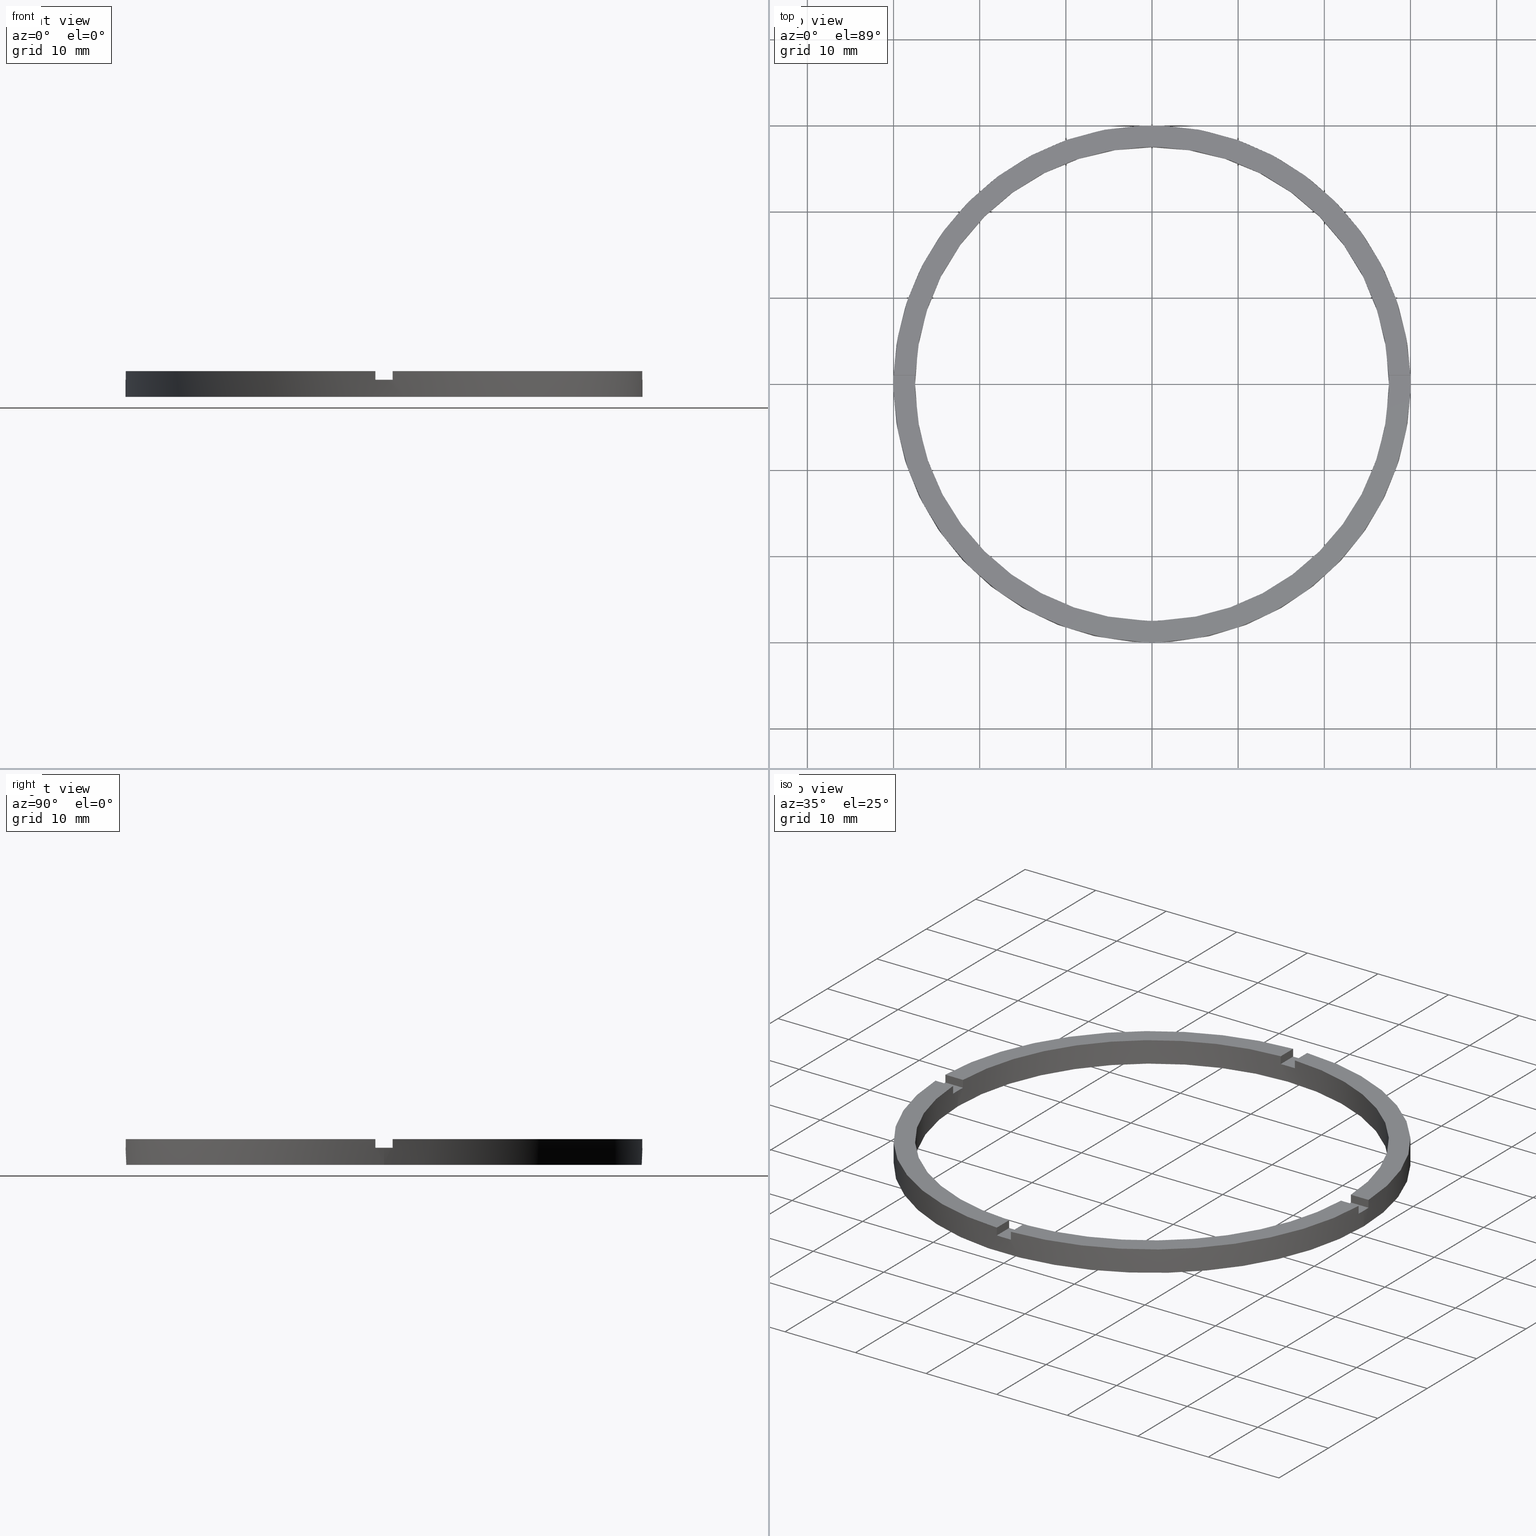
[diagram: canonical four-view strip — front | top / right | iso, engineering-drawing reading convention]
A machine part, canonical four-view strip (front | top / right | iso — engineering-drawing reading convention). The complete STEP part file that produces these views, byte-faithful:
ISO-10303-21;
HEADER;
FILE_DESCRIPTION (( 'STEP AP203' ),
    '1' );
FILE_NAME ('514125.step',
    '2024-12-26T02:39:53',
    ( 'MSI' ),
    ( '' ),
    'SwSTEP 2.0',
    'SolidWorks 2020',
    '' );
FILE_SCHEMA (( 'CONFIG_CONTROL_DESIGN' ));
ENDSEC;

DATA;
#1 = ORIENTED_EDGE ( 'NONE', *, *, #58, .F. ) ;
#2 = VECTOR ( 'NONE', #181, 1000.000000000000000 ) ;
#3 = ORIENTED_EDGE ( 'NONE', *, *, #628, .T. ) ;
#4 = CARTESIAN_POINT ( 'NONE',  ( 0.000000000000000000, 0.000000000000000000, 0.000000000000000000 ) ) ;
#5 = ORIENTED_EDGE ( 'NONE', *, *, #496, .T. ) ;
#6 = CIRCLE ( 'NONE', #525, 27.50000000000000000 ) ;
#7 = DIRECTION ( 'NONE',  ( 0.000000000000000000, 0.000000000000000000, 1.000000000000000000 ) ) ;
#8 = ORGANIZATION ( 'δָ��', 'δָ��', '' ) ;
#9 = CIRCLE ( 'NONE', #631, 30.00000000000000000 ) ;
#10 = CIRCLE ( 'NONE', #600, 27.50000000000000000 ) ;
#11 = DIRECTION ( 'NONE',  ( 0.000000000000000000, 0.000000000000000000, 1.000000000000000000 ) ) ;
#12 = CIRCLE ( 'NONE', #144, 27.50000000000000000 ) ;
#13 = CARTESIAN_POINT ( 'NONE',  ( 27.50000000000000000, 3.367778697655221307E-15, 2.000000000000000000 ) ) ;
#14 = VECTOR ( 'NONE', #372, 1000.000000000000000 ) ;
#15 = VECTOR ( 'NONE', #375, 1000.000000000000000 ) ;
#16 = EDGE_CURVE ( 'NONE', #452, #435, #162, .T. ) ;
#17 = DIRECTION ( 'NONE',  ( -1.000000000000000000, 0.000000000000000000, 0.000000000000000000 ) ) ;
#18 = EDGE_CURVE ( 'NONE', #130, #411, #672, .T. ) ;
#19 = CARTESIAN_POINT ( 'NONE',  ( 0.9999999999999729106, 29.98332870112989923, 3.000000000000000000 ) ) ;
#20 = AXIS2_PLACEMENT_3D ( 'NONE', #26, #33, #102 ) ;
#21 = LOCAL_TIME ( 10, 39, 53.00000000000000000, #301 ) ;
#22 = PLANE ( 'NONE',  #141 ) ;
#23 = AXIS2_PLACEMENT_3D ( 'NONE', #482, #76, #261 ) ;
#24 = CALENDAR_DATE ( 2024, 26, 12 ) ;
#25 = AXIS2_PLACEMENT_3D ( 'NONE', #4, #469, #262 ) ;
#26 = CARTESIAN_POINT ( 'NONE',  ( 0.000000000000000000, 0.000000000000000000, 0.000000000000000000 ) ) ;
#27 = COORDINATED_UNIVERSAL_TIME_OFFSET ( 8, 0, .AHEAD. ) ;
#28 = LINE ( 'NONE', #491, #43 ) ;
#29 = APPROVAL_DATE_TIME ( #294, #655 ) ;
#30 = EDGE_CURVE ( 'NONE', #235, #488, #166, .T. ) ;
#31 = PERSON_AND_ORGANIZATION ( #317, #8 ) ;
#32 = CARTESIAN_POINT ( 'NONE',  ( 0.000000000000000000, 0.000000000000000000, 3.000000000000000000 ) ) ;
#33 = DIRECTION ( 'NONE',  ( 0.000000000000000000, 0.000000000000000000, 1.000000000000000000 ) ) ;
#34 = APPROVAL_PERSON_ORGANIZATION ( #551, #655, #93 ) ;
#35 = CARTESIAN_POINT ( 'NONE',  ( -20.00000000000018119, -1.000000000000026201, 3.000000000000000000 ) ) ;
#36 = DATE_AND_TIME ( #24, #51 ) ;
#37 = EDGE_CURVE ( 'NONE', #721, #738, #426, .T. ) ;
#38 = CARTESIAN_POINT ( 'NONE',  ( -27.50000000000000000, 0.000000000000000000, 0.000000000000000000 ) ) ;
#39 = SHAPE_DEFINITION_REPRESENTATION ( #145, #142 ) ;
#40 = CARTESIAN_POINT ( 'NONE',  ( 0.9999999999999729106, 27.48181216732259102, 2.000000000000000000 ) ) ;
#41 = CARTESIAN_POINT ( 'NONE',  ( 27.50000000000000000, 3.367778697655221307E-15, 3.000000000000000000 ) ) ;
#42 = DIRECTION ( 'NONE',  ( 1.000000000000000000, -2.168404344971008560E-17, 0.000000000000000000 ) ) ;
#43 = VECTOR ( 'NONE', #327, 1000.000000000000000 ) ;
#44 = PERSON_AND_ORGANIZATION ( #317, #8 ) ;
#45 = ADVANCED_FACE ( 'NONE', ( #171 ), #97, .T. ) ;
#46 = APPROVAL_PERSON_ORGANIZATION ( #558, #451, #636 ) ;
#47 = DIRECTION ( 'NONE',  ( 1.000000000000000000, 0.000000000000000000, 0.000000000000000000 ) ) ;
#48 = DIRECTION ( 'NONE',  ( 6.505213034913025371E-17, -1.000000000000000000, 0.000000000000000000 ) ) ;
#49 = CARTESIAN_POINT ( 'NONE',  ( 0.000000000000000000, 0.000000000000000000, 0.000000000000000000 ) ) ;
#50 = CARTESIAN_POINT ( 'NONE',  ( -1.000000000000158984, -29.98332870112989212, 3.000000000000000000 ) ) ;
#51 = LOCAL_TIME ( 10, 39, 53.00000000000000000, #561 ) ;
#52 = VECTOR ( 'NONE', #128, 1000.000000000000000 ) ;
#53 = VECTOR ( 'NONE', #210, 1000.000000000000000 ) ;
#54 = DIRECTION ( 'NONE',  ( 0.000000000000000000, -0.000000000000000000, 1.000000000000000000 ) ) ;
#55 = LINE ( 'NONE', #80, #52 ) ;
#56 = DIRECTION ( 'NONE',  ( 1.000000000000000000, 0.000000000000000000, 0.000000000000000000 ) ) ;
#57 = EDGE_CURVE ( 'NONE', #380, #435, #680, .T. ) ;
#58 = EDGE_CURVE ( 'NONE', #602, #535, #200, .T. ) ;
#59 = DIRECTION ( 'NONE',  ( -6.505213034913025371E-17, 1.000000000000000000, 0.000000000000000000 ) ) ;
#60 = DIRECTION ( 'NONE',  ( 0.000000000000000000, -0.000000000000000000, 1.000000000000000000 ) ) ;
#61 = AXIS2_PLACEMENT_3D ( 'NONE', #367, #485, #642 ) ;
#62 = EDGE_CURVE ( 'NONE', #749, #157, #466, .T. ) ;
#63 = DIRECTION ( 'NONE',  ( 1.000000000000000000, 0.000000000000000000, -0.000000000000000000 ) ) ;
#64 = APPROVAL ( #304, 'δָ��' ) ;
#65 = AXIS2_PLACEMENT_3D ( 'NONE', #236, #468, #96 ) ;
#66 = DIRECTION ( 'NONE',  ( 1.000000000000000000, 0.000000000000000000, 0.000000000000000000 ) ) ;
#67 = DIRECTION ( 'NONE',  ( 0.000000000000000000, -0.000000000000000000, 1.000000000000000000 ) ) ;
#68 = DIRECTION ( 'NONE',  ( 0.000000000000000000, 0.000000000000000000, 1.000000000000000000 ) ) ;
#69 = ADVANCED_FACE ( 'NONE', ( #720 ), #104, .F. ) ;
#70 = PLANE ( 'NONE',  #61 ) ;
#71 = ADVANCED_FACE ( 'NONE', ( #218 ), #693, .F. ) ;
#72 = CARTESIAN_POINT ( 'NONE',  ( -1.000000000000158984, -29.98332870112989212, 3.000000000000000000 ) ) ;
#73 = CARTESIAN_POINT ( 'NONE',  ( -27.48181216732259102, 0.9999999999999722444, 2.000000000000000000 ) ) ;
#74 = ADVANCED_FACE ( 'NONE', ( #453 ), #709, .F. ) ;
#75 = CARTESIAN_POINT ( 'NONE',  ( 29.98332870112989212, -1.000000000000156097, 3.000000000000000000 ) ) ;
#76 = DIRECTION ( 'NONE',  ( 0.000000000000000000, -0.000000000000000000, 1.000000000000000000 ) ) ;
#77 = DIRECTION ( 'NONE',  ( -0.000000000000000000, -0.000000000000000000, -1.000000000000000000 ) ) ;
#78 = CC_DESIGN_DATE_AND_TIME_ASSIGNMENT ( #36, #393, ( #242 ) ) ;
#79 = EDGE_CURVE ( 'NONE', #143, #208, #695, .T. ) ;
#80 = CARTESIAN_POINT ( 'NONE',  ( 19.99999999999999289, -1.000000000000156763, 2.000000000000000000 ) ) ;
#81 = DIRECTION ( 'NONE',  ( -0.000000000000000000, -0.000000000000000000, -1.000000000000000000 ) ) ;
#82 = AXIS2_PLACEMENT_3D ( 'NONE', #149, #42, #126 ) ;
#83 = EDGE_CURVE ( 'NONE', #130, #638, #193, .T. ) ;
#84 = DIRECTION ( 'NONE',  ( 1.000000000000000000, 0.000000000000000000, 0.000000000000000000 ) ) ;
#85 = DIRECTION ( 'NONE',  ( 1.000000000000000000, 6.505213034913025371E-17, 0.000000000000000000 ) ) ;
#86 = DIRECTION ( 'NONE',  ( 1.000000000000000000, 0.000000000000000000, 0.000000000000000000 ) ) ;
#87 = PLANE ( 'NONE',  #608 ) ;
#88 = CC_DESIGN_PERSON_AND_ORGANIZATION_ASSIGNMENT ( #543, #349, ( #394 ) ) ;
#89 = APPLICATION_PROTOCOL_DEFINITION ( 'international standard', 'config_control_design', 1994, #620 ) ;
#90 = EDGE_CURVE ( 'NONE', #452, #398, #687, .T. ) ;
#91 = CARTESIAN_POINT ( 'NONE',  ( 0.000000000000000000, 0.000000000000000000, 3.000000000000000000 ) ) ;
#92 = VECTOR ( 'NONE', #520, 1000.000000000000000 ) ;
#93 = APPROVAL_ROLE ( '' ) ;
#94 = FACE_OUTER_BOUND ( 'NONE', #418, .T. ) ;
#95 = EDGE_CURVE ( 'NONE', #648, #143, #175, .T. ) ;
#96 = DIRECTION ( 'NONE',  ( 1.000000000000000000, 0.000000000000000000, 0.000000000000000000 ) ) ;
#97 = PLANE ( 'NONE',  #153 ) ;
#98 = AXIS2_PLACEMENT_3D ( 'NONE', #223, #742, #125 ) ;
#99 = LINE ( 'NONE', #50, #730 ) ;
#100 = EDGE_CURVE ( 'NONE', #398, #535, #454, .T. ) ;
#101 = DIRECTION ( 'NONE',  ( 0.000000000000000000, -0.000000000000000000, 1.000000000000000000 ) ) ;
#102 = DIRECTION ( 'NONE',  ( 1.000000000000000000, 0.000000000000000000, -0.000000000000000000 ) ) ;
#103 = EDGE_CURVE ( 'NONE', #160, #745, #698, .T. ) ;
#104 = PLANE ( 'NONE',  #610 ) ;
#105 = ORIENTED_EDGE ( 'NONE', *, *, #37, .F. ) ;
#106 = AXIS2_PLACEMENT_3D ( 'NONE', #664, #613, #84 ) ;
#107 = CARTESIAN_POINT ( 'NONE',  ( -29.98332870112989568, -1.000000000000028200, 3.000000000000000000 ) ) ;
#108 = DIRECTION ( 'NONE',  ( 1.000000000000000000, 0.000000000000000000, 0.000000000000000000 ) ) ;
#109 = ORIENTED_EDGE ( 'NONE', *, *, #465, .T. ) ;
#110 = EDGE_CURVE ( 'NONE', #661, #235, #437, .T. ) ;
#111 = CARTESIAN_POINT ( 'NONE',  ( -27.48181216732259102, 0.9999999999999722444, 3.000000000000000000 ) ) ;
#112 = ORIENTED_EDGE ( 'NONE', *, *, #62, .T. ) ;
#113 = VERTEX_POINT ( 'NONE', #72 ) ;
#114 = PLANE ( 'NONE',  #192 ) ;
#115 = DIRECTION ( 'NONE',  ( 1.000000000000000000, 0.000000000000000000, 0.000000000000000000 ) ) ;
#116 = DIRECTION ( 'NONE',  ( 0.000000000000000000, 0.000000000000000000, 1.000000000000000000 ) ) ;
#117 = CARTESIAN_POINT ( 'NONE',  ( 0.000000000000000000, 0.000000000000000000, 2.000000000000000000 ) ) ;
#118 = ORIENTED_EDGE ( 'NONE', *, *, #336, .F. ) ;
#119 = ORIENTED_EDGE ( 'NONE', *, *, #647, .F. ) ;
#120 = EDGE_LOOP ( 'NONE', ( #5, #124, #464, #404 ) ) ;
#121 = PLANE ( 'NONE',  #470 ) ;
#122 = EDGE_CURVE ( 'NONE', #489, #370, #678, .T. ) ;
#123 = CARTESIAN_POINT ( 'NONE',  ( -1.000000000000027089, 27.48181216732259102, 3.000000000000000000 ) ) ;
#124 = ORIENTED_EDGE ( 'NONE', *, *, #647, .T. ) ;
#125 = DIRECTION ( 'NONE',  ( 1.000000000000000000, 0.000000000000000000, 0.000000000000000000 ) ) ;
#126 = DIRECTION ( 'NONE',  ( 2.168404344971008560E-17, 1.000000000000000000, 0.000000000000000000 ) ) ;
#127 = ORIENTED_EDGE ( 'NONE', *, *, #415, .F. ) ;
#128 = DIRECTION ( 'NONE',  ( 1.000000000000000000, 6.505213034913025371E-17, 0.000000000000000000 ) ) ;
#129 = CARTESIAN_POINT ( 'NONE',  ( 0.9999999999998411271, -29.98332870112990278, 2.000000000000000000 ) ) ;
#130 = VERTEX_POINT ( 'NONE', #271 ) ;
#131 = CARTESIAN_POINT ( 'NONE',  ( -1.000000000000027089, 27.48181216732259102, 3.000000000000000000 ) ) ;
#132 = DIRECTION ( 'NONE',  ( 1.301042606982605074E-16, -1.000000000000000000, 0.000000000000000000 ) ) ;
#133 = ORIENTED_EDGE ( 'NONE', *, *, #195, .T. ) ;
#134 = EDGE_CURVE ( 'NONE', #225, #670, #184, .T. ) ;
#135 = CARTESIAN_POINT ( 'NONE',  ( 0.000000000000000000, 0.000000000000000000, 3.000000000000000000 ) ) ;
#136 = ORIENTED_EDGE ( 'NONE', *, *, #103, .T. ) ;
#137 = CARTESIAN_POINT ( 'NONE',  ( 27.48181216732259458, 0.9999999999998436806, 3.000000000000000000 ) ) ;
#138 = EDGE_LOOP ( 'NONE', ( #136, #133, #410, #409 ) ) ;
#139 = CARTESIAN_POINT ( 'NONE',  ( -29.98332870112989568, -1.000000000000028200, 2.000000000000000000 ) ) ;
#140 = DIRECTION ( 'NONE',  ( 0.000000000000000000, 0.000000000000000000, 1.000000000000000000 ) ) ;
#141 = AXIS2_PLACEMENT_3D ( 'NONE', #302, #307, #63 ) ;
#142 = ADVANCED_BREP_SHAPE_REPRESENTATION ( '514125', ( #701, #635 ), #238 ) ;
#143 = VERTEX_POINT ( 'NONE', #649 ) ;
#144 = AXIS2_PLACEMENT_3D ( 'NONE', #509, #606, #573 ) ;
#145 = PRODUCT_DEFINITION_SHAPE ( 'NONE', 'NONE',  #363 ) ;
#146 = AXIS2_PLACEMENT_3D ( 'NONE', #590, #11, #237 ) ;
#147 = ORIENTED_EDGE ( 'NONE', *, *, #578, .F. ) ;
#148 = ORIENTED_EDGE ( 'NONE', *, *, #555, .F. ) ;
#149 = CARTESIAN_POINT ( 'NONE',  ( 0.9999999999999726885, 19.99999999999999645, 2.000000000000000000 ) ) ;
#150 = ORIENTED_EDGE ( 'NONE', *, *, #350, .F. ) ;
#151 = VERTEX_POINT ( 'NONE', #570 ) ;
#152 = ORIENTED_EDGE ( 'NONE', *, *, #100, .T. ) ;
#153 = AXIS2_PLACEMENT_3D ( 'NONE', #710, #101, #170 ) ;
#154 = ORIENTED_EDGE ( 'NONE', *, *, #284, .T. ) ;
#155 = ORIENTED_EDGE ( 'NONE', *, *, #183, .F. ) ;
#156 = CARTESIAN_POINT ( 'NONE',  ( 30.00000000000000000, 3.673940397442059178E-15, 3.000000000000000000 ) ) ;
#157 = VERTEX_POINT ( 'NONE', #198 ) ;
#158 = DATE_TIME_ROLE ( 'creation_date' ) ;
#159 = ORIENTED_EDGE ( 'NONE', *, *, #90, .T. ) ;
#160 = VERTEX_POINT ( 'NONE', #365 ) ;
#161 = ORIENTED_EDGE ( 'NONE', *, *, #634, .F. ) ;
#162 = LINE ( 'NONE', #399, #422 ) ;
#163 = ORIENTED_EDGE ( 'NONE', *, *, #546, .F. ) ;
#164 = CARTESIAN_POINT ( 'NONE',  ( 0.9999999999998397948, -20.00000000000017764, 2.000000000000000000 ) ) ;
#165 = ORIENTED_EDGE ( 'NONE', *, *, #622, .T. ) ;
#166 = CIRCLE ( 'NONE', #25, 30.00000000000000000 ) ;
#167 = VERTEX_POINT ( 'NONE', #603 ) ;
#168 = VECTOR ( 'NONE', #588, 1000.000000000000000 ) ;
#169 = ORIENTED_EDGE ( 'NONE', *, *, #718, .T. ) ;
#170 = DIRECTION ( 'NONE',  ( 1.000000000000000000, 0.000000000000000000, -0.000000000000000000 ) ) ;
#171 = FACE_OUTER_BOUND ( 'NONE', #138, .T. ) ;
#172 = LINE ( 'NONE', #423, #707 ) ;
#173 = CARTESIAN_POINT ( 'NONE',  ( 0.000000000000000000, 0.000000000000000000, 3.000000000000000000 ) ) ;
#174 = EDGE_LOOP ( 'NONE', ( #461, #189, #712, #463, #438, #677 ) ) ;
#175 = LINE ( 'NONE', #111, #459 ) ;
#176 = ORIENTED_EDGE ( 'NONE', *, *, #269, .T. ) ;
#177 = LINE ( 'NONE', #541, #445 ) ;
#178 = CARTESIAN_POINT ( 'NONE',  ( -1.000000000000027311, 19.99999999999999645, 2.000000000000000000 ) ) ;
#179 = EDGE_LOOP ( 'NONE', ( #217, #626, #388, #669, #386, #118, #384, #246, #526, #259, #248, #3 ) ) ;
#180 = FACE_OUTER_BOUND ( 'NONE', #736, .T. ) ;
#181 = DIRECTION ( 'NONE',  ( -0.000000000000000000, -0.000000000000000000, -1.000000000000000000 ) ) ;
#182 = FACE_OUTER_BOUND ( 'NONE', #493, .T. ) ;
#183 = EDGE_CURVE ( 'NONE', #167, #670, #433, .T. ) ;
#184 = CIRCLE ( 'NONE', #337, 30.00000000000000000 ) ;
#185 = EDGE_CURVE ( 'NONE', #708, #651, #172, .T. ) ;
#186 = VECTOR ( 'NONE', #616, 1000.000000000000000 ) ;
#187 = DIRECTION ( 'NONE',  ( 0.000000000000000000, 0.000000000000000000, 1.000000000000000000 ) ) ;
#188 = ORIENTED_EDGE ( 'NONE', *, *, #465, .F. ) ;
#189 = ORIENTED_EDGE ( 'NONE', *, *, #656, .T. ) ;
#190 = AXIS2_PLACEMENT_3D ( 'NONE', #316, #7, #552 ) ;
#191 = CARTESIAN_POINT ( 'NONE',  ( 0.000000000000000000, 0.000000000000000000, 2.000000000000000000 ) ) ;
#192 = AXIS2_PLACEMENT_3D ( 'NONE', #321, #268, #273 ) ;
#193 = CIRCLE ( 'NONE', #146, 30.00000000000000000 ) ;
#194 = ADVANCED_FACE ( 'NONE', ( #689 ), #22, .T. ) ;
#195 = EDGE_CURVE ( 'NONE', #745, #226, #177, .T. ) ;
#196 = DESIGN_CONTEXT ( 'detailed design', #705, 'design' ) ;
#197 = VECTOR ( 'NONE', #326, 1000.000000000000000 ) ;
#198 = CARTESIAN_POINT ( 'NONE',  ( -1.000000000000159428, -27.48181216732258392, 3.000000000000000000 ) ) ;
#199 = ORIENTED_EDGE ( 'NONE', *, *, #83, .T. ) ;
#200 = LINE ( 'NONE', #315, #455 ) ;
#201 = CARTESIAN_POINT ( 'NONE',  ( 0.9999999999998397948, -20.00000000000017764, 3.000000000000000000 ) ) ;
#202 = EDGE_CURVE ( 'NONE', #370, #214, #205, .T. ) ;
#203 = CC_DESIGN_APPROVAL ( #64, ( #394 ) ) ;
#204 = ORIENTED_EDGE ( 'NONE', *, *, #586, .F. ) ;
#205 = CIRCLE ( 'NONE', #65, 27.50000000000000000 ) ;
#206 = AXIS2_PLACEMENT_3D ( 'NONE', #382, #539, #758 ) ;
#207 = DIRECTION ( 'NONE',  ( 0.000000000000000000, 0.000000000000000000, 1.000000000000000000 ) ) ;
#208 = VERTEX_POINT ( 'NONE', #587 ) ;
#209 = ADVANCED_FACE ( 'NONE', ( #439 ), #344, .F. ) ;
#210 = DIRECTION ( 'NONE',  ( -0.000000000000000000, -0.000000000000000000, -1.000000000000000000 ) ) ;
#211 = ORIENTED_EDGE ( 'NONE', *, *, #79, .T. ) ;
#212 = VERTEX_POINT ( 'NONE', #782 ) ;
#213 = CARTESIAN_POINT ( 'NONE',  ( -29.98332870112989568, -1.000000000000028200, 3.000000000000000000 ) ) ;
#214 = VERTEX_POINT ( 'NONE', #460 ) ;
#215 = VECTOR ( 'NONE', #490, 1000.000000000000000 ) ;
#216 = ADVANCED_FACE ( 'NONE', ( #180 ), #612, .F. ) ;
#217 = ORIENTED_EDGE ( 'NONE', *, *, #110, .F. ) ;
#218 = FACE_OUTER_BOUND ( 'NONE', #706, .T. ) ;
#219 = DIRECTION ( 'NONE',  ( 0.000000000000000000, 0.000000000000000000, 1.000000000000000000 ) ) ;
#220 = EDGE_LOOP ( 'NONE', ( #624, #633 ) ) ;
#221 = ADVANCED_FACE ( 'NONE', ( #182 ), #377, .T. ) ;
#222 = DIRECTION ( 'NONE',  ( 1.000000000000000000, 0.000000000000000000, 0.000000000000000000 ) ) ;
#223 = CARTESIAN_POINT ( 'NONE',  ( 0.000000000000000000, 0.000000000000000000, 0.000000000000000000 ) ) ;
#224 = EDGE_LOOP ( 'NONE', ( #531, #627, #413, #148 ) ) ;
#225 = VERTEX_POINT ( 'NONE', #228 ) ;
#226 = VERTEX_POINT ( 'NONE', #458 ) ;
#227 = UNCERTAINTY_MEASURE_WITH_UNIT (LENGTH_MEASURE( 1.000000000000000082E-05 ), #340, 'distance_accuracy_value', 'NONE');
#228 = CARTESIAN_POINT ( 'NONE',  ( 0.9999999999998411271, -29.98332870112990278, 3.000000000000000000 ) ) ;
#229 = CYLINDRICAL_SURFACE ( 'NONE', #771, 30.00000000000000000 ) ;
#230 = FACE_OUTER_BOUND ( 'NONE', #224, .T. ) ;
#231 = ORIENTED_EDGE ( 'NONE', *, *, #401, .T. ) ;
#232 = EDGE_CURVE ( 'NONE', #721, #160, #691, .T. ) ;
#233 = EDGE_LOOP ( 'NONE', ( #395, #270, #392, #450, #660, #674 ) ) ;
#234 = CLOSED_SHELL ( 'NONE', ( #71, #725, #732, #412, #501, #221, #492, #324, #74, #665, #654, #286, #209, #216, #514, #274, #598, #194, #69, #332, #45 ) ) ;
#235 = VERTEX_POINT ( 'NONE', #623 ) ;
#236 = CARTESIAN_POINT ( 'NONE',  ( 0.000000000000000000, 0.000000000000000000, 0.000000000000000000 ) ) ;
#237 = DIRECTION ( 'NONE',  ( 1.000000000000000000, 0.000000000000000000, 0.000000000000000000 ) ) ;
#238 =( GEOMETRIC_REPRESENTATION_CONTEXT ( 3 ) GLOBAL_UNCERTAINTY_ASSIGNED_CONTEXT ( ( #227 ) ) GLOBAL_UNIT_ASSIGNED_CONTEXT ( ( #340, #285, #335 ) ) REPRESENTATION_CONTEXT ( 'NONE', 'WORKASPACE' ) );
#239 = EDGE_CURVE ( 'NONE', #167, #661, #700, .T. ) ;
#240 = ORIENTED_EDGE ( 'NONE', *, *, #18, .T. ) ;
#241 = CARTESIAN_POINT ( 'NONE',  ( 0.000000000000000000, 0.000000000000000000, 3.000000000000000000 ) ) ;
#242 = SECURITY_CLASSIFICATION ( '', '', #549 ) ;
#243 = LINE ( 'NONE', #572, #759 ) ;
#244 = APPROVAL_STATUS ( 'not_yet_approved' ) ;
#245 = VECTOR ( 'NONE', #354, 1000.000000000000000 ) ;
#246 = ORIENTED_EDGE ( 'NONE', *, *, #476, .F. ) ;
#247 = CARTESIAN_POINT ( 'NONE',  ( -1.000000000000159428, -27.48181216732258392, 3.000000000000000000 ) ) ;
#248 = ORIENTED_EDGE ( 'NONE', *, *, #577, .T. ) ;
#249 = CARTESIAN_POINT ( 'NONE',  ( 0.000000000000000000, 0.000000000000000000, 2.000000000000000000 ) ) ;
#250 = LINE ( 'NONE', #35, #769 ) ;
#251 = VECTOR ( 'NONE', #330, 1000.000000000000000 ) ;
#252 = FACE_OUTER_BOUND ( 'NONE', #716, .T. ) ;
#253 = ORIENTED_EDGE ( 'NONE', *, *, #30, .F. ) ;
#254 = CARTESIAN_POINT ( 'NONE',  ( 29.98332870112990278, 0.9999999999998439026, 3.000000000000000000 ) ) ;
#255 = FACE_OUTER_BOUND ( 'NONE', #407, .T. ) ;
#256 = ORIENTED_EDGE ( 'NONE', *, *, #57, .T. ) ;
#257 = DIRECTION ( 'NONE',  ( 1.000000000000000000, 0.000000000000000000, 0.000000000000000000 ) ) ;
#258 = FACE_BOUND ( 'NONE', #220, .T. ) ;
#259 = ORIENTED_EDGE ( 'NONE', *, *, #656, .F. ) ;
#260 = LINE ( 'NONE', #419, #15 ) ;
#261 = DIRECTION ( 'NONE',  ( 1.000000000000000000, 0.000000000000000000, 0.000000000000000000 ) ) ;
#262 = DIRECTION ( 'NONE',  ( 1.000000000000000000, 0.000000000000000000, 0.000000000000000000 ) ) ;
#263 = CIRCLE ( 'NONE', #424, 27.50000000000000000 ) ;
#264 = ORIENTED_EDGE ( 'NONE', *, *, #752, .F. ) ;
#265 = CARTESIAN_POINT ( 'NONE',  ( -20.00000000000018119, -1.000000000000026201, 2.000000000000000000 ) ) ;
#266 = LINE ( 'NONE', #436, #538 ) ;
#267 = EDGE_CURVE ( 'NONE', #666, #208, #447, .T. ) ;
#268 = DIRECTION ( 'NONE',  ( -1.951563910473907735E-16, 1.000000000000000000, 0.000000000000000000 ) ) ;
#269 = EDGE_CURVE ( 'NONE', #749, #714, #614, .T. ) ;
#270 = ORIENTED_EDGE ( 'NONE', *, *, #634, .T. ) ;
#271 = CARTESIAN_POINT ( 'NONE',  ( 29.98332870112990278, 0.9999999999998439026, 3.000000000000000000 ) ) ;
#272 = ORIENTED_EDGE ( 'NONE', *, *, #267, .F. ) ;
#273 = DIRECTION ( 'NONE',  ( -1.000000000000000000, -1.951563910473907735E-16, 0.000000000000000000 ) ) ;
#274 = ADVANCED_FACE ( 'NONE', ( #94 ), #87, .F. ) ;
#275 = DIRECTION ( 'NONE',  ( -1.301042606982605074E-16, 1.000000000000000000, -0.000000000000000000 ) ) ;
#276 = CIRCLE ( 'NONE', #23, 30.00000000000000000 ) ;
#277 = LINE ( 'NONE', #41, #523 ) ;
#278 = CARTESIAN_POINT ( 'NONE',  ( 0.9999999999999729106, 27.48181216732259102, 3.000000000000000000 ) ) ;
#279 = DIRECTION ( 'NONE',  ( 0.000000000000000000, 0.000000000000000000, 1.000000000000000000 ) ) ;
#280 = FACE_OUTER_BOUND ( 'NONE', #692, .T. ) ;
#281 = CARTESIAN_POINT ( 'NONE',  ( 0.9999999999998406830, -27.48181216732259458, 3.000000000000000000 ) ) ;
#282 = LOCAL_TIME ( 10, 39, 53.00000000000000000, #295 ) ;
#283 = DIRECTION ( 'NONE',  ( 0.000000000000000000, 0.000000000000000000, 1.000000000000000000 ) ) ;
#284 = EDGE_CURVE ( 'NONE', #380, #651, #618, .T. ) ;
#285 =( NAMED_UNIT ( * ) PLANE_ANGLE_UNIT ( ) SI_UNIT ( $, .RADIAN. ) );
#286 = ADVANCED_FACE ( 'NONE', ( #366 ), #668, .T. ) ;
#287 = DIRECTION ( 'NONE',  ( 1.000000000000000000, 0.000000000000000000, 0.000000000000000000 ) ) ;
#288 = CALENDAR_DATE ( 2024, 26, 12 ) ;
#289 = CC_DESIGN_APPROVAL ( #451, ( #363 ) ) ;
#290 = LOCAL_TIME ( 10, 39, 53.00000000000000000, #27 ) ;
#291 = DIRECTION ( 'NONE',  ( -0.000000000000000000, -0.000000000000000000, -1.000000000000000000 ) ) ;
#292 = CARTESIAN_POINT ( 'NONE',  ( -1.000000000000027089, 29.98332870112989568, 2.000000000000000000 ) ) ;
#293 = CARTESIAN_POINT ( 'NONE',  ( -29.98332870112989923, 0.9999999999999718003, 3.000000000000000000 ) ) ;
#294 = DATE_AND_TIME ( #553, #21 ) ;
#295 = COORDINATED_UNIVERSAL_TIME_OFFSET ( 8, 0, .AHEAD. ) ;
#296 = PERSON_AND_ORGANIZATION ( #317, #8 ) ;
#297 = CARTESIAN_POINT ( 'NONE',  ( 0.9999999999998406830, -27.48181216732259458, 3.000000000000000000 ) ) ;
#298 = PERSON_AND_ORGANIZATION ( #317, #8 ) ;
#299 = EDGE_CURVE ( 'NONE', #602, #738, #359, .T. ) ;
#300 = PERSON_AND_ORGANIZATION ( #317, #8 ) ;
#301 = COORDINATED_UNIVERSAL_TIME_OFFSET ( 8, 0, .AHEAD. ) ;
#302 = CARTESIAN_POINT ( 'NONE',  ( 0.000000000000000000, 0.000000000000000000, 2.000000000000000000 ) ) ;
#303 = DATE_AND_TIME ( #548, #290 ) ;
#304 = APPROVAL_STATUS ( 'not_yet_approved' ) ;
#305 = DATE_AND_TIME ( #288, #545 ) ;
#306 = DATE_AND_TIME ( #563, #282 ) ;
#307 = DIRECTION ( 'NONE',  ( 0.000000000000000000, -0.000000000000000000, 1.000000000000000000 ) ) ;
#308 = DIRECTION ( 'NONE',  ( -0.000000000000000000, -0.000000000000000000, -1.000000000000000000 ) ) ;
#309 = AXIS2_PLACEMENT_3D ( 'NONE', #611, #368, #574 ) ;
#310 = LINE ( 'NONE', #740, #53 ) ;
#311 = AXIS2_PLACEMENT_3D ( 'NONE', #696, #67, #690 ) ;
#312 = CIRCLE ( 'NONE', #662, 30.00000000000000000 ) ;
#313 = LINE ( 'NONE', #201, #245 ) ;
#314 = EDGE_CURVE ( 'NONE', #714, #113, #99, .T. ) ;
#315 = CARTESIAN_POINT ( 'NONE',  ( 27.48181216732259458, 0.9999999999998436806, 3.000000000000000000 ) ) ;
#316 = CARTESIAN_POINT ( 'NONE',  ( 0.000000000000000000, 0.000000000000000000, 3.000000000000000000 ) ) ;
#317 = PERSON ( 'δָ��', 'δָ��', 'δָ��', ('δָ��'), ('δָ��'), ('δָ��') ) ;
#318 = AXIS2_PLACEMENT_3D ( 'NONE', #751, #575, #585 ) ;
#319 = CARTESIAN_POINT ( 'NONE',  ( 0.9999999999999729106, 27.48181216732259102, 3.000000000000000000 ) ) ;
#320 = DIRECTION ( 'NONE',  ( -1.000000000000000000, -6.505213034913025371E-17, -0.000000000000000000 ) ) ;
#321 = CARTESIAN_POINT ( 'NONE',  ( -20.00000000000018119, 0.9999999999999737987, 2.000000000000000000 ) ) ;
#322 = CARTESIAN_POINT ( 'NONE',  ( 0.000000000000000000, 0.000000000000000000, 3.000000000000000000 ) ) ;
#323 = DIRECTION ( 'NONE',  ( 1.000000000000000000, 0.000000000000000000, -0.000000000000000000 ) ) ;
#324 = ADVANCED_FACE ( 'NONE', ( #726 ), #229, .T. ) ;
#325 = CARTESIAN_POINT ( 'NONE',  ( 30.00000000000000000, 3.673940397442059178E-15, 2.000000000000000000 ) ) ;
#326 = DIRECTION ( 'NONE',  ( -0.000000000000000000, -0.000000000000000000, -1.000000000000000000 ) ) ;
#327 = DIRECTION ( 'NONE',  ( -0.000000000000000000, -0.000000000000000000, -1.000000000000000000 ) ) ;
#328 = PLANE ( 'NONE',  #471 ) ;
#329 = PLANE ( 'NONE',  #667 ) ;
#330 = DIRECTION ( 'NONE',  ( -0.000000000000000000, -0.000000000000000000, -1.000000000000000000 ) ) ;
#331 = CARTESIAN_POINT ( 'NONE',  ( 0.000000000000000000, 0.000000000000000000, 3.000000000000000000 ) ) ;
#332 = ADVANCED_FACE ( 'NONE', ( #230 ), #743, .F. ) ;
#333 = EDGE_CURVE ( 'NONE', #435, #670, #478, .T. ) ;
#334 = DIRECTION ( 'NONE',  ( 0.000000000000000000, 0.000000000000000000, 1.000000000000000000 ) ) ;
#335 =( NAMED_UNIT ( * ) SI_UNIT ( $, .STERADIAN. ) SOLID_ANGLE_UNIT ( ) );
#336 = EDGE_CURVE ( 'NONE', #714, #708, #568, .T. ) ;
#337 = AXIS2_PLACEMENT_3D ( 'NONE', #32, #494, #115 ) ;
#338 = AXIS2_PLACEMENT_3D ( 'NONE', #750, #48, #85 ) ;
#339 = CARTESIAN_POINT ( 'NONE',  ( 0.000000000000000000, 0.000000000000000000, 3.000000000000000000 ) ) ;
#340 =( LENGTH_UNIT ( ) NAMED_UNIT ( * ) SI_UNIT ( .MILLI., .METRE. ) );
#341 = EDGE_CURVE ( 'NONE', #721, #226, #569, .T. ) ;
#342 = CARTESIAN_POINT ( 'NONE',  ( 19.99999999999999289, -1.000000000000156763, 3.000000000000000000 ) ) ;
#343 = CARTESIAN_POINT ( 'NONE',  ( -1.000000000000160316, -20.00000000000017764, 2.000000000000000000 ) ) ;
#344 = PLANE ( 'NONE',  #536 ) ;
#345 = DIRECTION ( 'NONE',  ( -0.000000000000000000, -0.000000000000000000, -1.000000000000000000 ) ) ;
#346 = DIRECTION ( 'NONE',  ( -2.168404344971008560E-17, -1.000000000000000000, -0.000000000000000000 ) ) ;
#347 = DIRECTION ( 'NONE',  ( -2.168404344971008560E-17, -1.000000000000000000, 0.000000000000000000 ) ) ;
#348 = PRODUCT ( '514125', '514125', '', ( #675 ) ) ;
#349 = PERSON_AND_ORGANIZATION_ROLE ( 'creator' ) ;
#350 = EDGE_CURVE ( 'NONE', #753, #208, #312, .T. ) ;
#351 = ORIENTED_EDGE ( 'NONE', *, *, #79, .F. ) ;
#352 = PLANE ( 'NONE',  #20 ) ;
#353 = DIRECTION ( 'NONE',  ( 0.000000000000000000, 0.000000000000000000, 1.000000000000000000 ) ) ;
#354 = DIRECTION ( 'NONE',  ( -1.301042606982605074E-16, 1.000000000000000000, -0.000000000000000000 ) ) ;
#355 = DIRECTION ( 'NONE',  ( 1.000000000000000000, 1.951563910473907735E-16, 0.000000000000000000 ) ) ;
#356 = AXIS2_PLACEMENT_3D ( 'NONE', #704, #68, #66 ) ;
#357 = CARTESIAN_POINT ( 'NONE',  ( 0.000000000000000000, 0.000000000000000000, 2.000000000000000000 ) ) ;
#358 = AXIS2_PLACEMENT_3D ( 'NONE', #339, #334, #222 ) ;
#359 = CIRCLE ( 'NONE', #318, 27.50000000000000000 ) ;
#360 = EDGE_CURVE ( 'NONE', #753, #745, #310, .T. ) ;
#361 = CARTESIAN_POINT ( 'NONE',  ( 27.48181216732259458, 0.9999999999998436806, 2.000000000000000000 ) ) ;
#362 = VECTOR ( 'NONE', #132, 1000.000000000000000 ) ;
#363 = PRODUCT_DEFINITION ( 'δ֪', '', #394, #196 ) ;
#364 = ORIENTED_EDGE ( 'NONE', *, *, #333, .F. ) ;
#365 = CARTESIAN_POINT ( 'NONE',  ( 0.9999999999999729106, 29.98332870112989923, 2.000000000000000000 ) ) ;
#366 = FACE_OUTER_BOUND ( 'NONE', #174, .T. ) ;
#367 = CARTESIAN_POINT ( 'NONE',  ( 0.000000000000000000, 0.000000000000000000, 3.000000000000000000 ) ) ;
#368 = DIRECTION ( 'NONE',  ( -0.000000000000000000, -0.000000000000000000, -1.000000000000000000 ) ) ;
#369 = DIRECTION ( 'NONE',  ( 1.000000000000000000, 0.000000000000000000, -0.000000000000000000 ) ) ;
#370 = VERTEX_POINT ( 'NONE', #38 ) ;
#371 = ORIENTED_EDGE ( 'NONE', *, *, #737, .F. ) ;
#372 = DIRECTION ( 'NONE',  ( -1.000000000000000000, -1.951563910473907735E-16, 0.000000000000000000 ) ) ;
#373 = CARTESIAN_POINT ( 'NONE',  ( 19.99999999999998934, 0.9999999999998432365, 2.000000000000000000 ) ) ;
#374 = ORIENTED_EDGE ( 'NONE', *, *, #415, .T. ) ;
#375 = DIRECTION ( 'NONE',  ( 2.168404344971008560E-17, 1.000000000000000000, 0.000000000000000000 ) ) ;
#376 = DIRECTION ( 'NONE',  ( 0.000000000000000000, 0.000000000000000000, 1.000000000000000000 ) ) ;
#377 = PLANE ( 'NONE',  #637 ) ;
#378 = EDGE_CURVE ( 'NONE', #452, #167, #55, .T. ) ;
#379 = ORIENTED_EDGE ( 'NONE', *, *, #95, .F. ) ;
#380 = VERTEX_POINT ( 'NONE', #281 ) ;
#381 = EDGE_CURVE ( 'NONE', #212, #151, #28, .T. ) ;
#382 = CARTESIAN_POINT ( 'NONE',  ( -1.000000000000160316, -20.00000000000017764, 2.000000000000000000 ) ) ;
#383 = CC_DESIGN_PERSON_AND_ORGANIZATION_ASSIGNMENT ( #31, #699, ( #242 ) ) ;
#384 = ORIENTED_EDGE ( 'NONE', *, *, #314, .T. ) ;
#385 = DIRECTION ( 'NONE',  ( -0.000000000000000000, -0.000000000000000000, -1.000000000000000000 ) ) ;
#386 = ORIENTED_EDGE ( 'NONE', *, *, #737, .T. ) ;
#387 = AXIS2_PLACEMENT_3D ( 'NONE', #659, #140, #621 ) ;
#388 = ORIENTED_EDGE ( 'NONE', *, *, #183, .T. ) ;
#389 = EDGE_CURVE ( 'NONE', #666, #477, #564, .T. ) ;
#390 = DIRECTION ( 'NONE',  ( 1.000000000000000000, 1.301042606982605074E-16, 0.000000000000000000 ) ) ;
#391 = CARTESIAN_POINT ( 'NONE',  ( -20.00000000000018119, 0.9999999999999737987, 3.000000000000000000 ) ) ;
#392 = ORIENTED_EDGE ( 'NONE', *, *, #586, .T. ) ;
#393 = DATE_TIME_ROLE ( 'classification_date' ) ;
#394 = PRODUCT_DEFINITION_FORMATION_WITH_SPECIFIED_SOURCE ( '�κ�', '', #348, .NOT_KNOWN. ) ;
#395 = ORIENTED_EDGE ( 'NONE', *, *, #239, .T. ) ;
#396 = PERSON_AND_ORGANIZATION_ROLE ( 'creator' ) ;
#397 = ORIENTED_EDGE ( 'NONE', *, *, #381, .F. ) ;
#398 = VERTEX_POINT ( 'NONE', #13 ) ;
#399 = CARTESIAN_POINT ( 'NONE',  ( 27.48181216732258392, -1.000000000000156319, 3.000000000000000000 ) ) ;
#400 = ORIENTED_EDGE ( 'NONE', *, *, #628, .F. ) ;
#401 = EDGE_CURVE ( 'NONE', #225, #380, #313, .T. ) ;
#402 = ORIENTED_EDGE ( 'NONE', *, *, #185, .F. ) ;
#403 = DIRECTION ( 'NONE',  ( 1.000000000000000000, 1.951563910473907735E-16, -0.000000000000000000 ) ) ;
#404 = ORIENTED_EDGE ( 'NONE', *, *, #360, .F. ) ;
#405 = DIRECTION ( 'NONE',  ( 1.000000000000000000, 0.000000000000000000, 0.000000000000000000 ) ) ;
#406 = EDGE_LOOP ( 'NONE', ( #607, #653, #351, #147 ) ) ;
#407 = EDGE_LOOP ( 'NONE', ( #364, #495, #507, #499 ) ) ;
#408 = CARTESIAN_POINT ( 'NONE',  ( 29.98332870112990278, 0.9999999999998439026, 2.000000000000000000 ) ) ;
#409 = ORIENTED_EDGE ( 'NONE', *, *, #232, .T. ) ;
#410 = ORIENTED_EDGE ( 'NONE', *, *, #341, .F. ) ;
#411 = VERTEX_POINT ( 'NONE', #408 ) ;
#412 = ADVANCED_FACE ( 'NONE', ( #754 ), #70, .T. ) ;
#413 = ORIENTED_EDGE ( 'NONE', *, *, #546, .T. ) ;
#414 = EDGE_LOOP ( 'NONE', ( #400, #253 ) ) ;
#415 = EDGE_CURVE ( 'NONE', #157, #113, #243, .T. ) ;
#416 = DIRECTION ( 'NONE',  ( -0.000000000000000000, -0.000000000000000000, -1.000000000000000000 ) ) ;
#417 = ORIENTED_EDGE ( 'NONE', *, *, #122, .F. ) ;
#418 = EDGE_LOOP ( 'NONE', ( #109, #473, #204, #432 ) ) ;
#419 = CARTESIAN_POINT ( 'NONE',  ( 0.9999999999999726885, 19.99999999999999645, 3.000000000000000000 ) ) ;
#420 = EDGE_CURVE ( 'NONE', #746, #151, #503, .T. ) ;
#421 = ORIENTED_EDGE ( 'NONE', *, *, #389, .F. ) ;
#422 = VECTOR ( 'NONE', #353, 1000.000000000000000 ) ;
#423 = CARTESIAN_POINT ( 'NONE',  ( 0.9999999999998397948, -20.00000000000017764, 2.000000000000000000 ) ) ;
#424 = AXIS2_PLACEMENT_3D ( 'NONE', #331, #529, #86 ) ;
#425 = AXIS2_PLACEMENT_3D ( 'NONE', #322, #641, #480 ) ;
#426 = LINE ( 'NONE', #319, #168 ) ;
#427 = CARTESIAN_POINT ( 'NONE',  ( -27.50000000000000000, 0.000000000000000000, 2.000000000000000000 ) ) ;
#428 = VECTOR ( 'NONE', #416, 1000.000000000000000 ) ;
#429 = VECTOR ( 'NONE', #345, 1000.000000000000000 ) ;
#430 = ORIENTED_EDGE ( 'NONE', *, *, #267, .T. ) ;
#431 = CARTESIAN_POINT ( 'NONE',  ( -20.00000000000018119, -1.000000000000026201, 2.000000000000000000 ) ) ;
#432 = ORIENTED_EDGE ( 'NONE', *, *, #18, .F. ) ;
#433 = LINE ( 'NONE', #75, #703 ) ;
#434 = ORIENTED_EDGE ( 'NONE', *, *, #83, .F. ) ;
#435 = VERTEX_POINT ( 'NONE', #597 ) ;
#436 = CARTESIAN_POINT ( 'NONE',  ( -1.000000000000027311, 19.99999999999999645, 3.000000000000000000 ) ) ;
#437 = LINE ( 'NONE', #156, #429 ) ;
#438 = ORIENTED_EDGE ( 'NONE', *, *, #697, .F. ) ;
#439 = FACE_OUTER_BOUND ( 'NONE', #446, .T. ) ;
#440 = CARTESIAN_POINT ( 'NONE',  ( -29.98332870112989923, 0.9999999999999718003, 2.000000000000000000 ) ) ;
#441 = CARTESIAN_POINT ( 'NONE',  ( -1.000000000000027089, 29.98332870112989568, 3.000000000000000000 ) ) ;
#442 = DIRECTION ( 'NONE',  ( -1.000000000000000000, -6.505213034913025371E-17, 0.000000000000000000 ) ) ;
#443 = EDGE_LOOP ( 'NONE', ( #686, #663, #474, #155 ) ) ;
#444 = CARTESIAN_POINT ( 'NONE',  ( 0.000000000000000000, 0.000000000000000000, 2.000000000000000000 ) ) ;
#445 = VECTOR ( 'NONE', #346, 1000.000000000000000 ) ;
#446 = EDGE_LOOP ( 'NONE', ( #231, #154, #402, #371 ) ) ;
#447 = LINE ( 'NONE', #293, #617 ) ;
#448 = CARTESIAN_POINT ( 'NONE',  ( 19.99999999999998934, 0.9999999999998432365, 2.000000000000000000 ) ) ;
#449 = PLANE ( 'NONE',  #755 ) ;
#450 = ORIENTED_EDGE ( 'NONE', *, *, #100, .F. ) ;
#451 = APPROVAL ( #244, 'δָ��' ) ;
#452 = VERTEX_POINT ( 'NONE', #731 ) ;
#453 = FACE_OUTER_BOUND ( 'NONE', #728, .T. ) ;
#454 = CIRCLE ( 'NONE', #601, 27.50000000000000000 ) ;
#455 = VECTOR ( 'NONE', #550, 1000.000000000000000 ) ;
#456 = DIRECTION ( 'NONE',  ( -1.000000000000000000, -6.505213034913025371E-17, -0.000000000000000000 ) ) ;
#457 = CARTESIAN_POINT ( 'NONE',  ( 0.9999999999998411271, -29.98332870112990278, 3.000000000000000000 ) ) ;
#458 = CARTESIAN_POINT ( 'NONE',  ( -1.000000000000027089, 27.48181216732259102, 2.000000000000000000 ) ) ;
#459 = VECTOR ( 'NONE', #187, 1000.000000000000000 ) ;
#460 = CARTESIAN_POINT ( 'NONE',  ( 27.50000000000000000, 3.367778697655221307E-15, 0.000000000000000000 ) ) ;
#461 = ORIENTED_EDGE ( 'NONE', *, *, #389, .T. ) ;
#462 = ORIENTED_EDGE ( 'NONE', *, *, #185, .T. ) ;
#463 = ORIENTED_EDGE ( 'NONE', *, *, #605, .F. ) ;
#464 = ORIENTED_EDGE ( 'NONE', *, *, #195, .F. ) ;
#465 = EDGE_CURVE ( 'NONE', #130, #602, #506, .T. ) ;
#466 = LINE ( 'NONE', #247, #215 ) ;
#467 = EDGE_CURVE ( 'NONE', #739, #746, #773, .T. ) ;
#468 = DIRECTION ( 'NONE',  ( 0.000000000000000000, 0.000000000000000000, 1.000000000000000000 ) ) ;
#469 = DIRECTION ( 'NONE',  ( 0.000000000000000000, 0.000000000000000000, 1.000000000000000000 ) ) ;
#470 = AXIS2_PLACEMENT_3D ( 'NONE', #173, #116, #323 ) ;
#471 = AXIS2_PLACEMENT_3D ( 'NONE', #431, #498, #355 ) ;
#472 = AXIS2_PLACEMENT_3D ( 'NONE', #91, #783, #405 ) ;
#473 = ORIENTED_EDGE ( 'NONE', *, *, #58, .T. ) ;
#474 = ORIENTED_EDGE ( 'NONE', *, *, #333, .T. ) ;
#475 = APPROVAL_STATUS ( 'not_yet_approved' ) ;
#476 = EDGE_CURVE ( 'NONE', #739, #113, #775, .T. ) ;
#477 = VERTEX_POINT ( 'NONE', #645 ) ;
#478 = LINE ( 'NONE', #342, #733 ) ;
#479 = ORIENTED_EDGE ( 'NONE', *, *, #595, .F. ) ;
#480 = DIRECTION ( 'NONE',  ( -1.000000000000000000, 0.000000000000000000, 0.000000000000000000 ) ) ;
#481 = ORIENTED_EDGE ( 'NONE', *, *, #95, .T. ) ;
#482 = CARTESIAN_POINT ( 'NONE',  ( 0.000000000000000000, 0.000000000000000000, 2.000000000000000000 ) ) ;
#483 = AXIS2_PLACEMENT_3D ( 'NONE', #241, #308, #17 ) ;
#484 = ORIENTED_EDGE ( 'NONE', *, *, #748, .T. ) ;
#485 = DIRECTION ( 'NONE',  ( 0.000000000000000000, 0.000000000000000000, 1.000000000000000000 ) ) ;
#486 = ORIENTED_EDGE ( 'NONE', *, *, #555, .T. ) ;
#487 = DIRECTION ( 'NONE',  ( 0.000000000000000000, 0.000000000000000000, 1.000000000000000000 ) ) ;
#488 = VERTEX_POINT ( 'NONE', #719 ) ;
#489 = VERTEX_POINT ( 'NONE', #427 ) ;
#490 = DIRECTION ( 'NONE',  ( 0.000000000000000000, 0.000000000000000000, 1.000000000000000000 ) ) ;
#491 = CARTESIAN_POINT ( 'NONE',  ( -27.48181216732259102, -1.000000000000027756, 3.000000000000000000 ) ) ;
#492 = ADVANCED_FACE ( 'NONE', ( #515, #258 ), #352, .F. ) ;
#493 = EDGE_LOOP ( 'NONE', ( #127, #765, #681, #625 ) ) ;
#494 = DIRECTION ( 'NONE',  ( 0.000000000000000000, 0.000000000000000000, 1.000000000000000000 ) ) ;
#495 = ORIENTED_EDGE ( 'NONE', *, *, #57, .F. ) ;
#496 = EDGE_CURVE ( 'NONE', #753, #770, #266, .T. ) ;
#497 = ORIENTED_EDGE ( 'NONE', *, *, #284, .F. ) ;
#498 = DIRECTION ( 'NONE',  ( 1.951563910473907735E-16, -1.000000000000000000, 0.000000000000000000 ) ) ;
#499 = ORIENTED_EDGE ( 'NONE', *, *, #134, .T. ) ;
#500 = VECTOR ( 'NONE', #291, 1000.000000000000000 ) ;
#501 = ADVANCED_FACE ( 'NONE', ( #255 ), #121, .T. ) ;
#502 = LINE ( 'NONE', #619, #500 ) ;
#503 = LINE ( 'NONE', #265, #768 ) ;
#504 = EDGE_LOOP ( 'NONE', ( #646, #462, #629, #176 ) ) ;
#505 = VECTOR ( 'NONE', #456, 1000.000000000000000 ) ;
#506 = LINE ( 'NONE', #557, #537 ) ;
#507 = ORIENTED_EDGE ( 'NONE', *, *, #401, .F. ) ;
#508 = FACE_OUTER_BOUND ( 'NONE', #406, .T. ) ;
#509 = CARTESIAN_POINT ( 'NONE',  ( 0.000000000000000000, 0.000000000000000000, 2.000000000000000000 ) ) ;
#510 = CARTESIAN_POINT ( 'NONE',  ( 0.000000000000000000, 0.000000000000000000, 3.000000000000000000 ) ) ;
#511 = ORIENTED_EDGE ( 'NONE', *, *, #697, .T. ) ;
#512 = CIRCLE ( 'NONE', #358, 27.50000000000000000 ) ;
#513 = VECTOR ( 'NONE', #283, 1000.000000000000000 ) ;
#514 = ADVANCED_FACE ( 'NONE', ( #779 ), #329, .T. ) ;
#515 = FACE_OUTER_BOUND ( 'NONE', #414, .T. ) ;
#516 = DIRECTION ( 'NONE',  ( 1.000000000000000000, 6.505213034913025371E-17, 0.000000000000000000 ) ) ;
#517 = ORIENTED_EDGE ( 'NONE', *, *, #360, .T. ) ;
#518 = LINE ( 'NONE', #457, #778 ) ;
#519 = CARTESIAN_POINT ( 'NONE',  ( -1.000000000000159428, -27.48181216732258392, 2.000000000000000000 ) ) ;
#520 = DIRECTION ( 'NONE',  ( -0.000000000000000000, -0.000000000000000000, -1.000000000000000000 ) ) ;
#521 = ORIENTED_EDGE ( 'NONE', *, *, #122, .T. ) ;
#522 = AXIS2_PLACEMENT_3D ( 'NONE', #630, #596, #776 ) ;
#523 = VECTOR ( 'NONE', #81, 1000.000000000000000 ) ;
#524 = LINE ( 'NONE', #123, #251 ) ;
#525 = AXIS2_PLACEMENT_3D ( 'NONE', #117, #487, #108 ) ;
#526 = ORIENTED_EDGE ( 'NONE', *, *, #467, .T. ) ;
#527 = LINE ( 'NONE', #528, #14 ) ;
#528 = CARTESIAN_POINT ( 'NONE',  ( -20.00000000000018119, 0.9999999999999737987, 2.000000000000000000 ) ) ;
#529 = DIRECTION ( 'NONE',  ( 0.000000000000000000, 0.000000000000000000, 1.000000000000000000 ) ) ;
#530 = DIRECTION ( 'NONE',  ( 0.000000000000000000, 0.000000000000000000, 1.000000000000000000 ) ) ;
#531 = ORIENTED_EDGE ( 'NONE', *, *, #232, .F. ) ;
#532 = CC_DESIGN_DATE_AND_TIME_ASSIGNMENT ( #306, #158, ( #363 ) ) ;
#533 = ORIENTED_EDGE ( 'NONE', *, *, #381, .T. ) ;
#534 = CIRCLE ( 'NONE', #98, 27.50000000000000000 ) ;
#535 = VERTEX_POINT ( 'NONE', #361 ) ;
#536 = AXIS2_PLACEMENT_3D ( 'NONE', #164, #390, #694 ) ;
#537 = VECTOR ( 'NONE', #320, 1000.000000000000000 ) ;
#538 = VECTOR ( 'NONE', #593, 1000.000000000000000 ) ;
#539 = DIRECTION ( 'NONE',  ( -1.000000000000000000, -1.301042606982605074E-16, 0.000000000000000000 ) ) ;
#540 = COORDINATED_UNIVERSAL_TIME_OFFSET ( 8, 0, .AHEAD. ) ;
#541 = CARTESIAN_POINT ( 'NONE',  ( -1.000000000000027311, 19.99999999999999645, 2.000000000000000000 ) ) ;
#542 = DIRECTION ( 'NONE',  ( -1.000000000000000000, -1.951563910473907735E-16, 0.000000000000000000 ) ) ;
#543 = PERSON_AND_ORGANIZATION ( #317, #8 ) ;
#544 = APPROVAL_DATE_TIME ( #303, #451 ) ;
#545 = LOCAL_TIME ( 10, 39, 53.00000000000000000, #540 ) ;
#546 = EDGE_CURVE ( 'NONE', #738, #638, #260, .T. ) ;
#547 = APPROVAL_DATE_TIME ( #305, #64 ) ;
#548 = CALENDAR_DATE ( 2024, 26, 12 ) ;
#549 = SECURITY_CLASSIFICATION_LEVEL ( 'unclassified' ) ;
#550 = DIRECTION ( 'NONE',  ( -0.000000000000000000, -0.000000000000000000, -1.000000000000000000 ) ) ;
#551 = PERSON_AND_ORGANIZATION ( #317, #8 ) ;
#552 = DIRECTION ( 'NONE',  ( 1.000000000000000000, 0.000000000000000000, 0.000000000000000000 ) ) ;
#553 = CALENDAR_DATE ( 2024, 26, 12 ) ;
#554 = CC_DESIGN_SECURITY_CLASSIFICATION ( #242, ( #394 ) ) ;
#555 = EDGE_CURVE ( 'NONE', #160, #638, #781, .T. ) ;
#556 = DIRECTION ( 'NONE',  ( 0.000000000000000000, 0.000000000000000000, 1.000000000000000000 ) ) ;
#557 = CARTESIAN_POINT ( 'NONE',  ( 19.99999999999998934, 0.9999999999998432365, 3.000000000000000000 ) ) ;
#558 = PERSON_AND_ORGANIZATION ( #317, #8 ) ;
#559 = APPROVAL_PERSON_ORGANIZATION ( #44, #64, #589 ) ;
#560 = AXIS2_PLACEMENT_3D ( 'NONE', #727, #594, #713 ) ;
#561 = COORDINATED_UNIVERSAL_TIME_OFFSET ( 8, 0, .AHEAD. ) ;
#562 = DIRECTION ( 'NONE',  ( 1.000000000000000000, 0.000000000000000000, 0.000000000000000000 ) ) ;
#563 = CALENDAR_DATE ( 2024, 26, 12 ) ;
#564 = CIRCLE ( 'NONE', #356, 30.00000000000000000 ) ;
#565 = DIRECTION ( 'NONE',  ( 1.301042606982605074E-16, -1.000000000000000000, 0.000000000000000000 ) ) ;
#566 = CC_DESIGN_PERSON_AND_ORGANIZATION_ASSIGNMENT ( #298, #632, ( #394 ) ) ;
#567 = CARTESIAN_POINT ( 'NONE',  ( -1.000000000000158984, -29.98332870112989212, 2.000000000000000000 ) ) ;
#568 = CIRCLE ( 'NONE', #106, 30.00000000000000000 ) ;
#569 = CIRCLE ( 'NONE', #584, 27.50000000000000000 ) ;
#570 = CARTESIAN_POINT ( 'NONE',  ( -27.48181216732259102, -1.000000000000027756, 2.000000000000000000 ) ) ;
#571 = CARTESIAN_POINT ( 'NONE',  ( 29.98332870112989212, -1.000000000000156097, 3.000000000000000000 ) ) ;
#572 = CARTESIAN_POINT ( 'NONE',  ( -1.000000000000160316, -20.00000000000017764, 3.000000000000000000 ) ) ;
#573 = DIRECTION ( 'NONE',  ( 1.000000000000000000, 0.000000000000000000, 0.000000000000000000 ) ) ;
#574 = DIRECTION ( 'NONE',  ( -1.000000000000000000, 0.000000000000000000, 0.000000000000000000 ) ) ;
#575 = DIRECTION ( 'NONE',  ( 0.000000000000000000, 0.000000000000000000, 1.000000000000000000 ) ) ;
#576 = DIRECTION ( 'NONE',  ( 0.000000000000000000, -0.000000000000000000, 1.000000000000000000 ) ) ;
#577 = EDGE_CURVE ( 'NONE', #477, #488, #502, .T. ) ;
#578 = EDGE_CURVE ( 'NONE', #770, #143, #512, .T. ) ;
#579 = CARTESIAN_POINT ( 'NONE',  ( 0.9999999999999729106, 29.98332870112989923, 3.000000000000000000 ) ) ;
#580 = DIRECTION ( 'NONE',  ( 1.000000000000000000, 0.000000000000000000, 0.000000000000000000 ) ) ;
#581 = CARTESIAN_POINT ( 'NONE',  ( 0.000000000000000000, 0.000000000000000000, 3.000000000000000000 ) ) ;
#582 = CARTESIAN_POINT ( 'NONE',  ( 0.000000000000000000, 0.000000000000000000, 2.000000000000000000 ) ) ;
#583 = PRODUCT_RELATED_PRODUCT_CATEGORY ( 'detail', '', ( #348 ) ) ;
#584 = AXIS2_PLACEMENT_3D ( 'NONE', #444, #576, #47 ) ;
#585 = DIRECTION ( 'NONE',  ( 1.000000000000000000, 0.000000000000000000, 0.000000000000000000 ) ) ;
#586 = EDGE_CURVE ( 'NONE', #411, #535, #764, .T. ) ;
#587 = CARTESIAN_POINT ( 'NONE',  ( -29.98332870112989923, 0.9999999999999718003, 3.000000000000000000 ) ) ;
#588 = DIRECTION ( 'NONE',  ( 0.000000000000000000, 0.000000000000000000, 1.000000000000000000 ) ) ;
#589 = APPROVAL_ROLE ( '' ) ;
#590 = CARTESIAN_POINT ( 'NONE',  ( 0.000000000000000000, 0.000000000000000000, 3.000000000000000000 ) ) ;
#591 = APPLICATION_PROTOCOL_DEFINITION ( 'international standard', 'config_control_design', 1994, #705 ) ;
#592 = DIRECTION ( 'NONE',  ( -1.000000000000000000, 2.168404344971008560E-17, 0.000000000000000000 ) ) ;
#593 = DIRECTION ( 'NONE',  ( -2.168404344971008560E-17, -1.000000000000000000, -0.000000000000000000 ) ) ;
#594 = DIRECTION ( 'NONE',  ( 0.000000000000000000, 0.000000000000000000, 1.000000000000000000 ) ) ;
#595 = EDGE_CURVE ( 'NONE', #648, #666, #527, .T. ) ;
#596 = DIRECTION ( 'NONE',  ( 0.000000000000000000, -0.000000000000000000, 1.000000000000000000 ) ) ;
#597 = CARTESIAN_POINT ( 'NONE',  ( 27.48181216732258392, -1.000000000000156319, 3.000000000000000000 ) ) ;
#598 = ADVANCED_FACE ( 'NONE', ( #772 ), #615, .F. ) ;
#599 = DIRECTION ( 'NONE',  ( -0.000000000000000000, 0.000000000000000000, 1.000000000000000000 ) ) ;
#600 = AXIS2_PLACEMENT_3D ( 'NONE', #657, #599, #741 ) ;
#601 = AXIS2_PLACEMENT_3D ( 'NONE', #357, #60, #562 ) ;
#602 = VERTEX_POINT ( 'NONE', #137 ) ;
#603 = CARTESIAN_POINT ( 'NONE',  ( 29.98332870112989212, -1.000000000000156097, 2.000000000000000000 ) ) ;
#604 = CC_DESIGN_APPROVAL ( #655, ( #242 ) ) ;
#605 = EDGE_CURVE ( 'NONE', #489, #151, #6, .T. ) ;
#606 = DIRECTION ( 'NONE',  ( 0.000000000000000000, 0.000000000000000000, 1.000000000000000000 ) ) ;
#607 = ORIENTED_EDGE ( 'NONE', *, *, #496, .F. ) ;
#608 = AXIS2_PLACEMENT_3D ( 'NONE', #373, #59, #442 ) ;
#609 = DIRECTION ( 'NONE',  ( 1.000000000000000000, 0.000000000000000000, 0.000000000000000000 ) ) ;
#610 = AXIS2_PLACEMENT_3D ( 'NONE', #178, #592, #347 ) ;
#611 = CARTESIAN_POINT ( 'NONE',  ( 0.000000000000000000, 0.000000000000000000, 3.000000000000000000 ) ) ;
#612 = PLANE ( 'NONE',  #206 ) ;
#613 = DIRECTION ( 'NONE',  ( -0.000000000000000000, 0.000000000000000000, 1.000000000000000000 ) ) ;
#614 = LINE ( 'NONE', #343, #362 ) ;
#615 = PLANE ( 'NONE',  #338 ) ;
#616 = DIRECTION ( 'NONE',  ( 2.168404344971008560E-17, 1.000000000000000000, 0.000000000000000000 ) ) ;
#617 = VECTOR ( 'NONE', #682, 1000.000000000000000 ) ;
#618 = LINE ( 'NONE', #297, #92 ) ;
#619 = CARTESIAN_POINT ( 'NONE',  ( -30.00000000000000000, 0.000000000000000000, 3.000000000000000000 ) ) ;
#620 = APPLICATION_CONTEXT ( 'configuration controlled 3d designs of mechanical parts and assemblies' ) ;
#621 = DIRECTION ( 'NONE',  ( 1.000000000000000000, 0.000000000000000000, -0.000000000000000000 ) ) ;
#622 = EDGE_CURVE ( 'NONE', #739, #212, #250, .T. ) ;
#623 = CARTESIAN_POINT ( 'NONE',  ( 30.00000000000000000, 3.673940397442059178E-15, 0.000000000000000000 ) ) ;
#624 = ORIENTED_EDGE ( 'NONE', *, *, #202, .T. ) ;
#625 = ORIENTED_EDGE ( 'NONE', *, *, #476, .T. ) ;
#626 = ORIENTED_EDGE ( 'NONE', *, *, #239, .F. ) ;
#627 = ORIENTED_EDGE ( 'NONE', *, *, #37, .T. ) ;
#628 = EDGE_CURVE ( 'NONE', #488, #235, #761, .T. ) ;
#629 = ORIENTED_EDGE ( 'NONE', *, *, #718, .F. ) ;
#630 = CARTESIAN_POINT ( 'NONE',  ( 0.000000000000000000, 0.000000000000000000, 2.000000000000000000 ) ) ;
#631 = AXIS2_PLACEMENT_3D ( 'NONE', #191, #556, #609 ) ;
#632 = PERSON_AND_ORGANIZATION_ROLE ( 'design_supplier' ) ;
#633 = ORIENTED_EDGE ( 'NONE', *, *, #752, .T. ) ;
#634 = EDGE_CURVE ( 'NONE', #661, #411, #276, .T. ) ;
#635 = AXIS2_PLACEMENT_3D ( 'NONE', #49, #376, #580 ) ;
#636 = APPROVAL_ROLE ( '' ) ;
#637 = AXIS2_PLACEMENT_3D ( 'NONE', #510, #279, #369 ) ;
#638 = VERTEX_POINT ( 'NONE', #19 ) ;
#639 = DIRECTION ( 'NONE',  ( -0.000000000000000000, 0.000000000000000000, 1.000000000000000000 ) ) ;
#640 = ORIENTED_EDGE ( 'NONE', *, *, #62, .F. ) ;
#641 = DIRECTION ( 'NONE',  ( -0.000000000000000000, -0.000000000000000000, -1.000000000000000000 ) ) ;
#642 = DIRECTION ( 'NONE',  ( 1.000000000000000000, 0.000000000000000000, -0.000000000000000000 ) ) ;
#643 = ORIENTED_EDGE ( 'NONE', *, *, #110, .T. ) ;
#644 = ORIENTED_EDGE ( 'NONE', *, *, #202, .F. ) ;
#645 = CARTESIAN_POINT ( 'NONE',  ( -30.00000000000000000, 0.000000000000000000, 2.000000000000000000 ) ) ;
#646 = ORIENTED_EDGE ( 'NONE', *, *, #336, .T. ) ;
#647 = EDGE_CURVE ( 'NONE', #770, #226, #524, .T. ) ;
#648 = VERTEX_POINT ( 'NONE', #73 ) ;
#649 = CARTESIAN_POINT ( 'NONE',  ( -27.48181216732259102, 0.9999999999999722444, 3.000000000000000000 ) ) ;
#650 = DIRECTION ( 'NONE',  ( 1.000000000000000000, 1.951563910473907735E-16, -0.000000000000000000 ) ) ;
#651 = VERTEX_POINT ( 'NONE', #734 ) ;
#652 = ORIENTED_EDGE ( 'NONE', *, *, #341, .T. ) ;
#653 = ORIENTED_EDGE ( 'NONE', *, *, #350, .T. ) ;
#654 = ADVANCED_FACE ( 'NONE', ( #252 ), #114, .F. ) ;
#655 = APPROVAL ( #475, 'δָ��' ) ;
#656 = EDGE_CURVE ( 'NONE', #477, #746, #9, .T. ) ;
#657 = CARTESIAN_POINT ( 'NONE',  ( 0.000000000000000000, 0.000000000000000000, 2.000000000000000000 ) ) ;
#658 = CARTESIAN_POINT ( 'NONE',  ( 0.000000000000000000, 0.000000000000000000, 3.000000000000000000 ) ) ;
#659 = CARTESIAN_POINT ( 'NONE',  ( 0.000000000000000000, 0.000000000000000000, 2.000000000000000000 ) ) ;
#660 = ORIENTED_EDGE ( 'NONE', *, *, #90, .F. ) ;
#661 = VERTEX_POINT ( 'NONE', #325 ) ;
#662 = AXIS2_PLACEMENT_3D ( 'NONE', #135, #219, #287 ) ;
#663 = ORIENTED_EDGE ( 'NONE', *, *, #16, .T. ) ;
#664 = CARTESIAN_POINT ( 'NONE',  ( 0.000000000000000000, 0.000000000000000000, 2.000000000000000000 ) ) ;
#665 = ADVANCED_FACE ( 'NONE', ( #777 ), #328, .F. ) ;
#666 = VERTEX_POINT ( 'NONE', #440 ) ;
#667 = AXIS2_PLACEMENT_3D ( 'NONE', #249, #639, #257 ) ;
#668 = PLANE ( 'NONE',  #387 ) ;
#669 = ORIENTED_EDGE ( 'NONE', *, *, #134, .F. ) ;
#670 = VERTEX_POINT ( 'NONE', #571 ) ;
#671 = ORIENTED_EDGE ( 'NONE', *, *, #762, .T. ) ;
#672 = LINE ( 'NONE', #254, #428 ) ;
#673 = CC_DESIGN_PERSON_AND_ORGANIZATION_ASSIGNMENT ( #296, #757, ( #348 ) ) ;
#674 = ORIENTED_EDGE ( 'NONE', *, *, #378, .T. ) ;
#675 = MECHANICAL_CONTEXT ( 'NONE', #620, 'mechanical' ) ;
#676 = DIRECTION ( 'NONE',  ( -1.000000000000000000, 0.000000000000000000, 0.000000000000000000 ) ) ;
#677 = ORIENTED_EDGE ( 'NONE', *, *, #595, .T. ) ;
#678 = LINE ( 'NONE', #723, #197 ) ;
#679 = ORIENTED_EDGE ( 'NONE', *, *, #16, .F. ) ;
#680 = CIRCLE ( 'NONE', #472, 27.50000000000000000 ) ;
#681 = ORIENTED_EDGE ( 'NONE', *, *, #622, .F. ) ;
#682 = DIRECTION ( 'NONE',  ( 0.000000000000000000, 0.000000000000000000, 1.000000000000000000 ) ) ;
#683 = EDGE_LOOP ( 'NONE', ( #165, #533, #724, #711 ) ) ;
#684 = ORIENTED_EDGE ( 'NONE', *, *, #299, .T. ) ;
#685 = ORIENTED_EDGE ( 'NONE', *, *, #314, .F. ) ;
#686 = ORIENTED_EDGE ( 'NONE', *, *, #378, .F. ) ;
#687 = CIRCLE ( 'NONE', #311, 27.50000000000000000 ) ;
#688 = ORIENTED_EDGE ( 'NONE', *, *, #269, .F. ) ;
#689 = FACE_OUTER_BOUND ( 'NONE', #233, .T. ) ;
#690 = DIRECTION ( 'NONE',  ( 1.000000000000000000, 0.000000000000000000, 0.000000000000000000 ) ) ;
#691 = LINE ( 'NONE', #767, #186 ) ;
#692 = EDGE_LOOP ( 'NONE', ( #161, #643, #780, #760, #421, #430, #150, #517, #756, #486, #434, #240 ) ) ;
#693 = CYLINDRICAL_SURFACE ( 'NONE', #425, 27.50000000000000000 ) ;
#694 = DIRECTION ( 'NONE',  ( -1.301042606982605074E-16, 1.000000000000000000, 0.000000000000000000 ) ) ;
#695 = LINE ( 'NONE', #391, #702 ) ;
#696 = CARTESIAN_POINT ( 'NONE',  ( 0.000000000000000000, 0.000000000000000000, 2.000000000000000000 ) ) ;
#697 = EDGE_CURVE ( 'NONE', #648, #489, #12, .T. ) ;
#698 = CIRCLE ( 'NONE', #522, 30.00000000000000000 ) ;
#699 = PERSON_AND_ORGANIZATION_ROLE ( 'classification_officer' ) ;
#700 = CIRCLE ( 'NONE', #715, 30.00000000000000000 ) ;
#701 = MANIFOLD_SOLID_BREP ( '�г�-����1', #234 ) ;
#702 = VECTOR ( 'NONE', #542, 1000.000000000000000 ) ;
#703 = VECTOR ( 'NONE', #729, 1000.000000000000000 ) ;
#704 = CARTESIAN_POINT ( 'NONE',  ( 0.000000000000000000, 0.000000000000000000, 2.000000000000000000 ) ) ;
#705 = APPLICATION_CONTEXT ( 'configuration controlled 3d designs of mechanical parts and assemblies' ) ;
#706 = EDGE_LOOP ( 'NONE', ( #159, #671, #644, #417, #747, #397, #484, #640, #169, #497, #256, #679 ) ) ;
#707 = VECTOR ( 'NONE', #275, 1000.000000000000000 ) ;
#708 = VERTEX_POINT ( 'NONE', #129 ) ;
#709 = CYLINDRICAL_SURFACE ( 'NONE', #483, 27.50000000000000000 ) ;
#710 = CARTESIAN_POINT ( 'NONE',  ( 0.000000000000000000, 0.000000000000000000, 2.000000000000000000 ) ) ;
#711 = ORIENTED_EDGE ( 'NONE', *, *, #467, .F. ) ;
#712 = ORIENTED_EDGE ( 'NONE', *, *, #420, .T. ) ;
#713 = DIRECTION ( 'NONE',  ( 1.000000000000000000, 0.000000000000000000, 0.000000000000000000 ) ) ;
#714 = VERTEX_POINT ( 'NONE', #567 ) ;
#715 = AXIS2_PLACEMENT_3D ( 'NONE', #582, #54, #56 ) ;
#716 = EDGE_LOOP ( 'NONE', ( #479, #481, #211, #272 ) ) ;
#717 = EDGE_LOOP ( 'NONE', ( #163, #744, #188, #199 ) ) ;
#718 = EDGE_CURVE ( 'NONE', #749, #651, #10, .T. ) ;
#719 = CARTESIAN_POINT ( 'NONE',  ( -30.00000000000000000, 0.000000000000000000, 0.000000000000000000 ) ) ;
#720 = FACE_OUTER_BOUND ( 'NONE', #120, .T. ) ;
#721 = VERTEX_POINT ( 'NONE', #40 ) ;
#722 = CC_DESIGN_PERSON_AND_ORGANIZATION_ASSIGNMENT ( #300, #396, ( #363 ) ) ;
#723 = CARTESIAN_POINT ( 'NONE',  ( -27.50000000000000000, 0.000000000000000000, 3.000000000000000000 ) ) ;
#724 = ORIENTED_EDGE ( 'NONE', *, *, #420, .F. ) ;
#725 = ADVANCED_FACE ( 'NONE', ( #280 ), #766, .T. ) ;
#726 = FACE_OUTER_BOUND ( 'NONE', #179, .T. ) ;
#727 = CARTESIAN_POINT ( 'NONE',  ( 0.000000000000000000, 0.000000000000000000, 0.000000000000000000 ) ) ;
#728 = EDGE_LOOP ( 'NONE', ( #763, #152, #1, #684, #105, #652, #119, #774, #379, #511, #521, #264 ) ) ;
#729 = DIRECTION ( 'NONE',  ( 0.000000000000000000, 0.000000000000000000, 1.000000000000000000 ) ) ;
#730 = VECTOR ( 'NONE', #530, 1000.000000000000000 ) ;
#731 = CARTESIAN_POINT ( 'NONE',  ( 27.48181216732258392, -1.000000000000156319, 2.000000000000000000 ) ) ;
#732 = ADVANCED_FACE ( 'NONE', ( #508 ), #449, .T. ) ;
#733 = VECTOR ( 'NONE', #516, 1000.000000000000000 ) ;
#734 = CARTESIAN_POINT ( 'NONE',  ( 0.9999999999998406830, -27.48181216732259458, 2.000000000000000000 ) ) ;
#735 = DIRECTION ( 'NONE',  ( 1.000000000000000000, 0.000000000000000000, -0.000000000000000000 ) ) ;
#736 = EDGE_LOOP ( 'NONE', ( #688, #112, #374, #685 ) ) ;
#737 = EDGE_CURVE ( 'NONE', #225, #708, #518, .T. ) ;
#738 = VERTEX_POINT ( 'NONE', #278 ) ;
#739 = VERTEX_POINT ( 'NONE', #213 ) ;
#740 = CARTESIAN_POINT ( 'NONE',  ( -1.000000000000027089, 29.98332870112989568, 3.000000000000000000 ) ) ;
#741 = DIRECTION ( 'NONE',  ( 1.000000000000000000, 0.000000000000000000, 0.000000000000000000 ) ) ;
#742 = DIRECTION ( 'NONE',  ( 0.000000000000000000, 0.000000000000000000, 1.000000000000000000 ) ) ;
#743 = PLANE ( 'NONE',  #82 ) ;
#744 = ORIENTED_EDGE ( 'NONE', *, *, #299, .F. ) ;
#745 = VERTEX_POINT ( 'NONE', #292 ) ;
#746 = VERTEX_POINT ( 'NONE', #139 ) ;
#747 = ORIENTED_EDGE ( 'NONE', *, *, #605, .T. ) ;
#748 = EDGE_CURVE ( 'NONE', #212, #157, #263, .T. ) ;
#749 = VERTEX_POINT ( 'NONE', #519 ) ;
#750 = CARTESIAN_POINT ( 'NONE',  ( 19.99999999999999289, -1.000000000000156763, 2.000000000000000000 ) ) ;
#751 = CARTESIAN_POINT ( 'NONE',  ( 0.000000000000000000, 0.000000000000000000, 3.000000000000000000 ) ) ;
#752 = EDGE_CURVE ( 'NONE', #214, #370, #534, .T. ) ;
#753 = VERTEX_POINT ( 'NONE', #441 ) ;
#754 = FACE_OUTER_BOUND ( 'NONE', #717, .T. ) ;
#755 = AXIS2_PLACEMENT_3D ( 'NONE', #658, #207, #735 ) ;
#756 = ORIENTED_EDGE ( 'NONE', *, *, #103, .F. ) ;
#757 = PERSON_AND_ORGANIZATION_ROLE ( 'design_owner' ) ;
#758 = DIRECTION ( 'NONE',  ( 1.301042606982605074E-16, -1.000000000000000000, 0.000000000000000000 ) ) ;
#759 = VECTOR ( 'NONE', #565, 1000.000000000000000 ) ;
#760 = ORIENTED_EDGE ( 'NONE', *, *, #577, .F. ) ;
#761 = CIRCLE ( 'NONE', #560, 30.00000000000000000 ) ;
#762 = EDGE_CURVE ( 'NONE', #398, #214, #277, .T. ) ;
#763 = ORIENTED_EDGE ( 'NONE', *, *, #762, .F. ) ;
#764 = LINE ( 'NONE', #448, #505 ) ;
#765 = ORIENTED_EDGE ( 'NONE', *, *, #748, .F. ) ;
#766 = CYLINDRICAL_SURFACE ( 'NONE', #309, 30.00000000000000000 ) ;
#767 = CARTESIAN_POINT ( 'NONE',  ( 0.9999999999999726885, 19.99999999999999645, 2.000000000000000000 ) ) ;
#768 = VECTOR ( 'NONE', #650, 1000.000000000000000 ) ;
#769 = VECTOR ( 'NONE', #403, 1000.000000000000000 ) ;
#770 = VERTEX_POINT ( 'NONE', #131 ) ;
#771 = AXIS2_PLACEMENT_3D ( 'NONE', #581, #385, #676 ) ;
#772 = FACE_OUTER_BOUND ( 'NONE', #443, .T. ) ;
#773 = LINE ( 'NONE', #107, #2 ) ;
#774 = ORIENTED_EDGE ( 'NONE', *, *, #578, .T. ) ;
#775 = CIRCLE ( 'NONE', #190, 30.00000000000000000 ) ;
#776 = DIRECTION ( 'NONE',  ( 1.000000000000000000, 0.000000000000000000, 0.000000000000000000 ) ) ;
#777 = FACE_OUTER_BOUND ( 'NONE', #683, .T. ) ;
#778 = VECTOR ( 'NONE', #77, 1000.000000000000000 ) ;
#779 = FACE_OUTER_BOUND ( 'NONE', #504, .T. ) ;
#780 = ORIENTED_EDGE ( 'NONE', *, *, #30, .T. ) ;
#781 = LINE ( 'NONE', #579, #513 ) ;
#782 = CARTESIAN_POINT ( 'NONE',  ( -27.48181216732259102, -1.000000000000027756, 3.000000000000000000 ) ) ;
#783 = DIRECTION ( 'NONE',  ( 0.000000000000000000, 0.000000000000000000, 1.000000000000000000 ) ) ;
ENDSEC;
END-ISO-10303-21;
